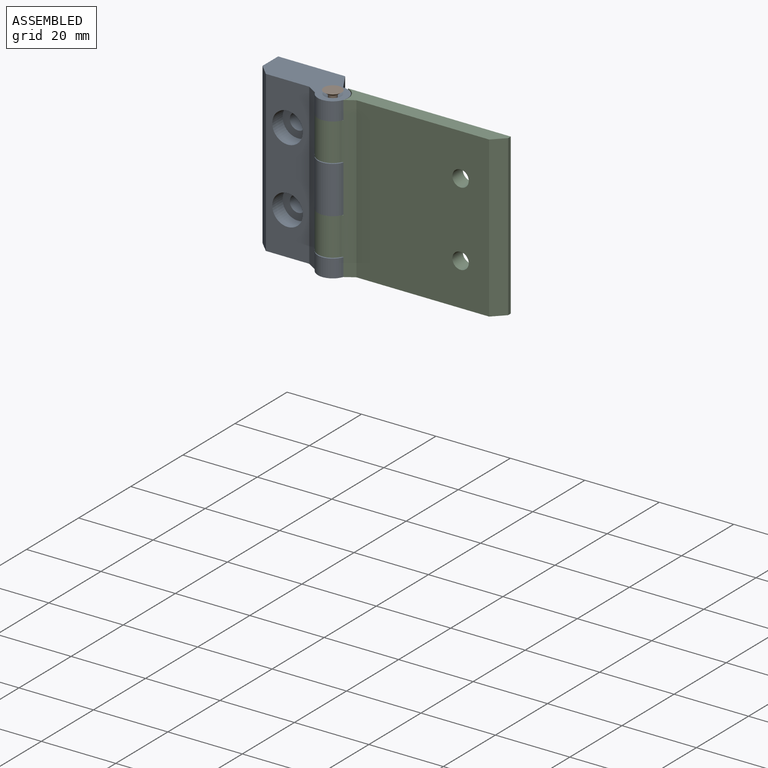
[diagram: assembled view]
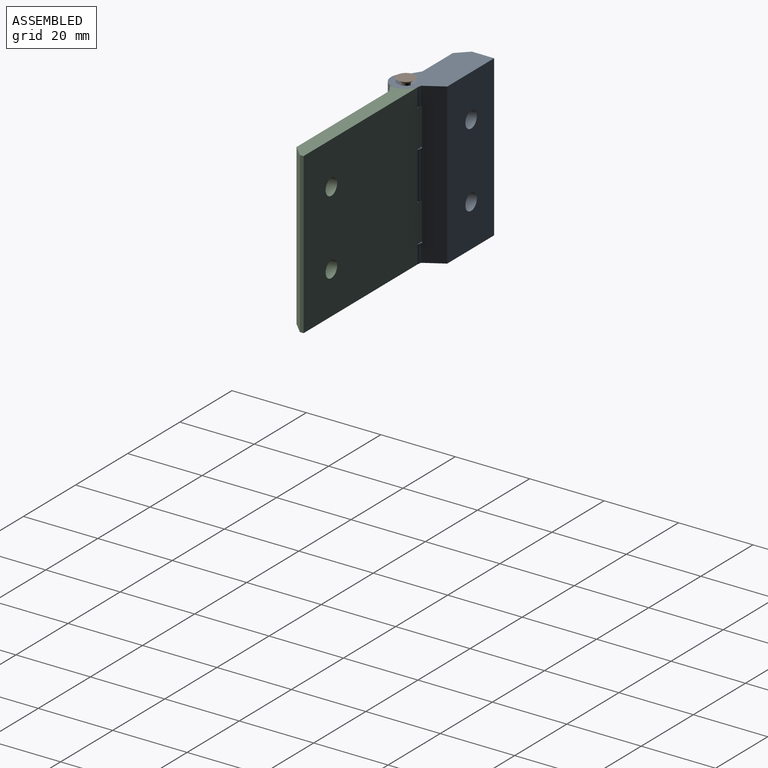
[diagram: assembled view, second angle]
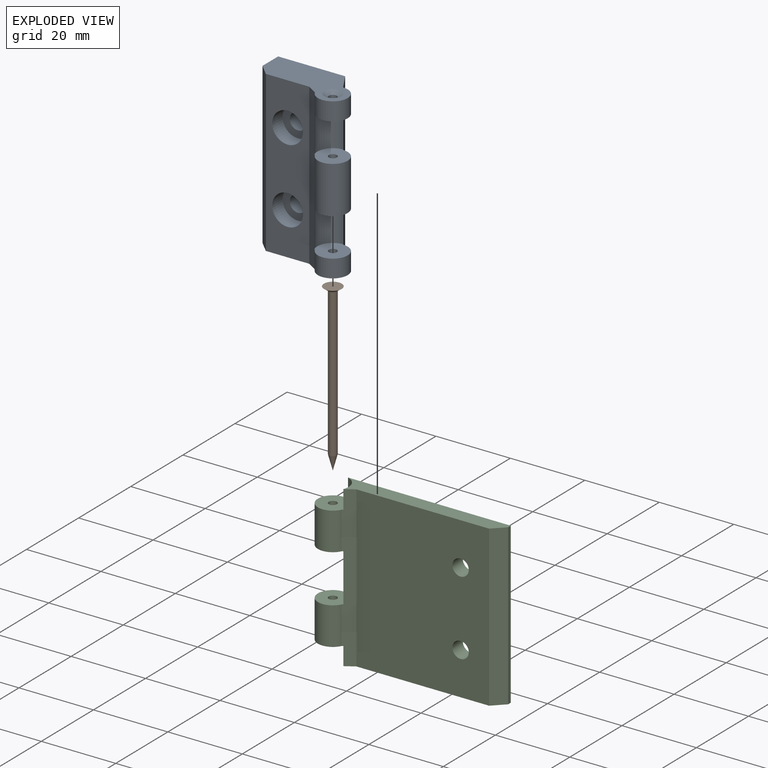
[diagram: exploded view]
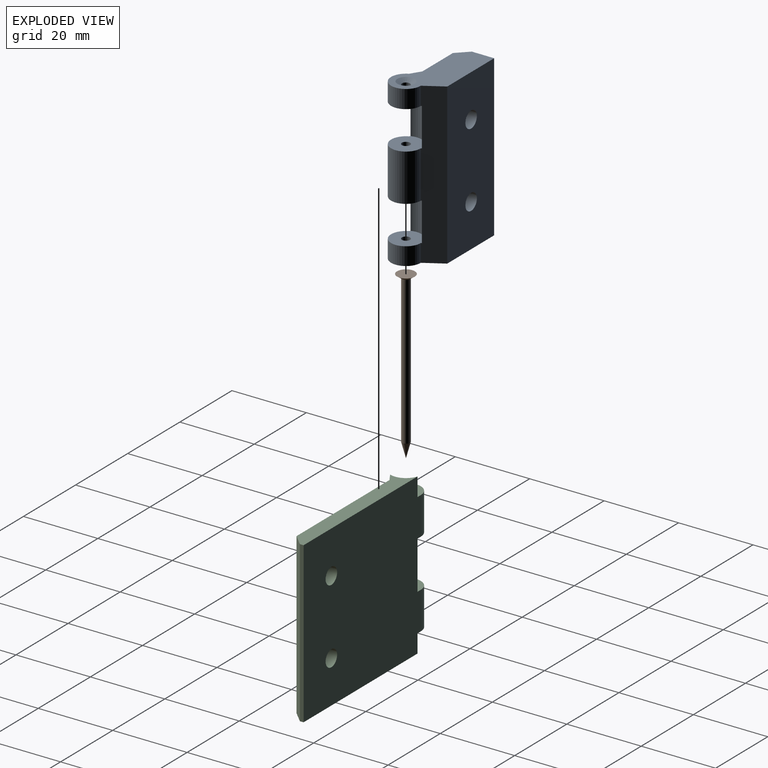
[diagram: exploded view, second angle]
ASSEMBLY  parts=3 mates=2
PART A: 27 faces, bbox 25x13x43 mm
  f0: cylinder r=4mm len=12.7mm, axis (0,0,-1), area 216.9mm2, adj f12,f19,f21,f25
  f1: cylinder r=1.1mm len=12.7mm, axis (0,0,-1), area 87.8mm2, adj f21,f25
  f2: cylinder r=4mm len=8mm, axis (0,0,-1), area 82mm2, adj f10,f12,f19,f22
  f3: cylinder r=1.1mm len=4.8mm, axis (0,0,-1), area 33.2mm2, adj f10,f22
  f4: plane 43x11.68mm, normal (0,-1,0), area 395.1mm2, adj f9,f10,f11,f12,f15,f18
  f5: cylinder r=4mm len=8mm, axis (0,0,-1), area 83.7mm2, adj f9,f12,f19,f24
  f6: plane 43x18mm, normal (0,1,0), area 743.6mm2, adj f7,f9,f10,f13,f16,f19
  f7: plane 43x6mm, normal (-1,0,0), area 258mm2, adj f6,f9,f10,f11
  f8: cylinder r=1.1mm len=4.1mm, axis (0,0,-1), area 28.3mm2, adj f24,f26
  f9: plane 25x13mm, normal (0,0,1), area 200mm2, adj f4,f5,f6,f7,f11,f12,f19,f26
  f10: plane 25x13mm, normal (0,0,-1), area 212.8mm2, adj f2,f3,f4,f6,f7,f11,f12,f19
  f11: plane 43x3mm, normal (-0.71,-0.71,0), area 182.4mm2, adj f4,f7,f9,f10
  f12: plane 43x2.71mm, normal (-0.53,-0.85,0), area 130.6mm2, adj f0,f2,f4,f5,f9,f10,f20,f21
  f13: cylinder r=2.2mm len=5mm, axis (0,-1,0), area 69.1mm2, adj f6,f14
  f14: plane 8.25x8.25mm, normal (0,-1,0), area 38.3mm2, adj f13,f15
  f15: cylinder r=4.12mm len=8.25mm, axis (0,-1,0), area 103.7mm2, adj f4,f14
  f16: cylinder r=2.2mm len=5mm, axis (0,-1,0), area 69.1mm2, adj f6,f17
  f17: plane 8.25x8.25mm, normal (0,-1,0), area 38.3mm2, adj f16,f18
  f18: cylinder r=4.12mm len=8.25mm, axis (0,-1,0), area 103.7mm2, adj f4,f17
  f19: plane 43x5mm, normal (0.86,0.51,0), area 246mm2, adj f0,f2,f5,f6,f9,f10,f20,f21
  f20: cylinder r=4.2mm len=10.3mm, axis (0,0,-1), area 82.8mm2, adj f12,f19,f21,f22
  f21: plane 8.2x8.2mm, normal (0,0,-1), area 48.1mm2, adj f0,f1,f12,f19,f20
  f22: plane 8.2x8.2mm, normal (0,0,1), area 48.1mm2, adj f2,f3,f12,f19,f20
  f23: cylinder r=4.2mm len=10.3mm, axis (0,0,-1), area 82.8mm2, adj f12,f19,f24,f25
  f24: plane 8.2x8.2mm, normal (0,0,-1), area 48.1mm2, adj f5,f8,f12,f19,f23
  f25: plane 8.2x8.2mm, normal (0,0,1), area 48.1mm2, adj f0,f1,f12,f19,f23
  f26: cone r=1.1mm half-angle=56.3deg, axis (0,0,1), area 15.4mm2, adj f8,f9
PART B: 4 faces, bbox 4.8x4.8x44.8 mm
  f0: plane 4.8x4.8mm, normal (0,0,1), area 18.1mm2, adj f1
  f1: cone r=1.07mm half-angle=55deg, axis (0,0,1), area 17.7mm2, adj f0,f2
  f2: cylinder r=1.07mm len=39.81mm, axis (0,0,1), area 268.9mm2, adj f1,f3
  f3: cone r=0mm half-angle=15deg, axis (0,0,1), area 14mm2, adj f2
PART C: 20 faces, bbox 49x8x43 mm
  f0: plane 45x43mm, normal (0,1,0), area 1875.4mm2, adj f2,f4,f6,f8,f9,f11,f12,f13
  f1: plane 43x2.71mm, normal (-0.53,-0.85,0), area 129.8mm2, adj f2,f4,f6,f7,f9,f13,f14,f15
  f2: cylinder r=4mm len=10.1mm, axis (0,0,-1), area 172.5mm2, adj f0,f1,f16,f18
  f3: cylinder r=1.1mm len=10.1mm, axis (0,0,-1), area 69.8mm2, adj f16,f18
  f4: cylinder r=4mm len=10.1mm, axis (0,0,-1), area 172.5mm2, adj f0,f1,f14,f17
  f5: cylinder r=1.1mm len=10.1mm, axis (0,0,-1), area 69.8mm2, adj f14,f17
  f6: plane 43.72x5.53mm, normal (0,0,-1), area 163.4mm2, adj f0,f1,f7,f8,f10,f13
  f7: plane 43x35.68mm, normal (0,-1,0), area 1503.6mm2, adj f1,f6,f9,f10,f11,f12
  f8: plane 43x1mm, normal (-1,0,0), area 43mm2, adj f0,f6,f9,f10
  f9: plane 43.72x5.53mm, normal (0,0,1), area 163.4mm2, adj f0,f1,f7,f8,f10,f19
  f10: plane 43x3mm, normal (-0.71,-0.71,0), area 182.4mm2, adj f6,f7,f8,f9
  f11: cylinder r=2.2mm len=4.4mm, axis (0,-1,0), area 55.3mm2, adj f0,f7
  f12: cylinder r=2.2mm len=4.4mm, axis (0,-1,0), area 55.3mm2, adj f0,f7
  f13: cylinder r=4.2mm len=5.53mm, axis (0,0,-1), area 34.3mm2, adj f0,f1,f6,f14
  f14: plane 8.2x8mm, normal (0,0,-1), area 47.9mm2, adj f0,f1,f4,f5,f13
  f15: cylinder r=4.2mm len=12.9mm, axis (0,0,-1), area 88.5mm2, adj f0,f1,f16,f17
  f16: plane 8.2x8mm, normal (0,0,-1), area 47.9mm2, adj f0,f1,f2,f3,f15
  f17: plane 8.2x8mm, normal (0,0,1), area 47.9mm2, adj f0,f1,f4,f5,f15
  f18: plane 8.2x8mm, normal (0,0,1), area 47.9mm2, adj f0,f1,f2,f3,f19
  f19: cylinder r=4.2mm len=5.53mm, axis (0,0,-1), area 33.6mm2, adj f0,f1,f9,f18
PLACE A t=(-80.86,14.04,20.94)mm
PLACE B t=(-70.36,9.54,45.41)mm
PLACE C rot(axis=(0,1,0),180deg) t=(-47.86,11.54,64.04)mm
MATE cylindrical B.f3 <-> A.f0  axis (0,0,1) through (-70.36,9.54,63.94)mm
MATE revolute A.f0 <-> C.f2  axis (0,0,-1) through (-70.36,9.54,59.04)mm
